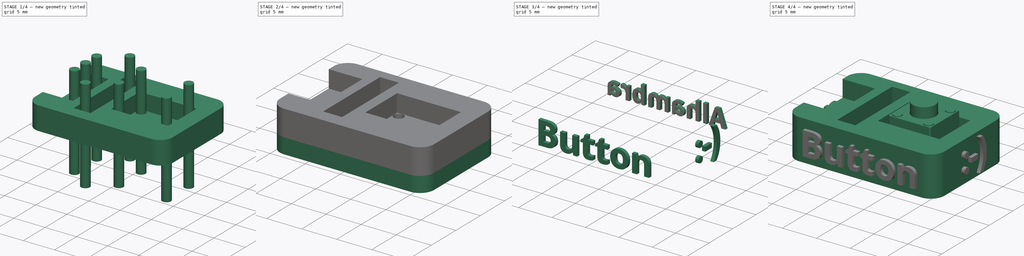
[diagram: build sequence overview — one tinted view per stage of 4, left to right]
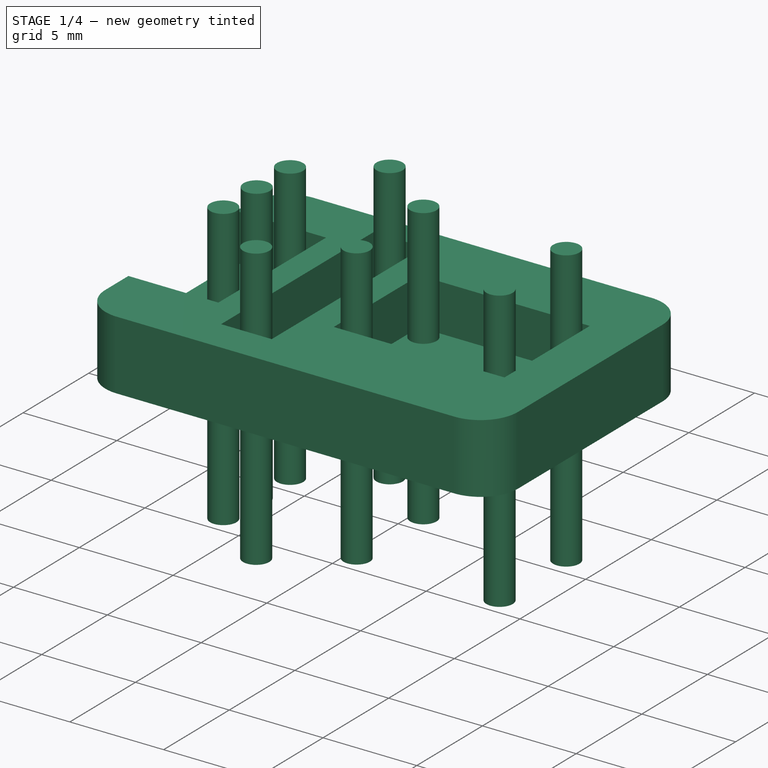
[diagram: stage 1 of 4 — iso view after this stage's code; geometry added in this stage tinted green]
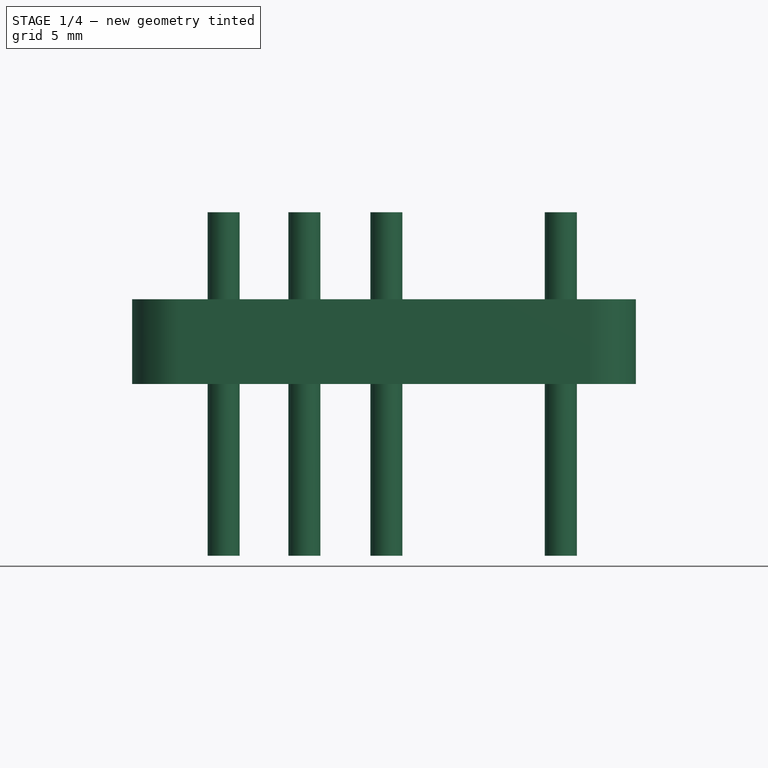
[diagram: stage 1 of 4 — front view after this stage's code; geometry added in this stage tinted green]
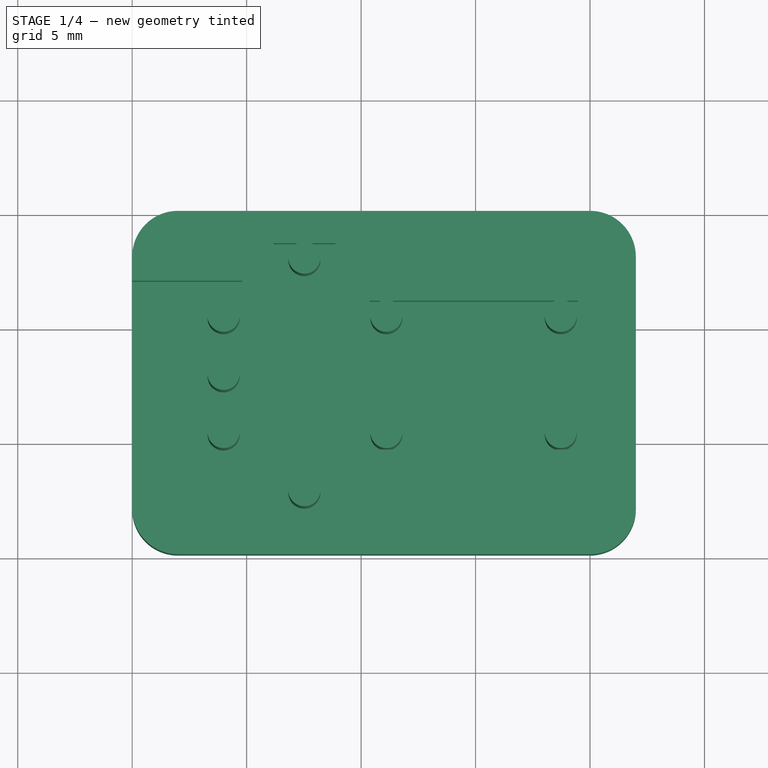
[diagram: stage 1 of 4 — top view after this stage's code; geometry added in this stage tinted green]
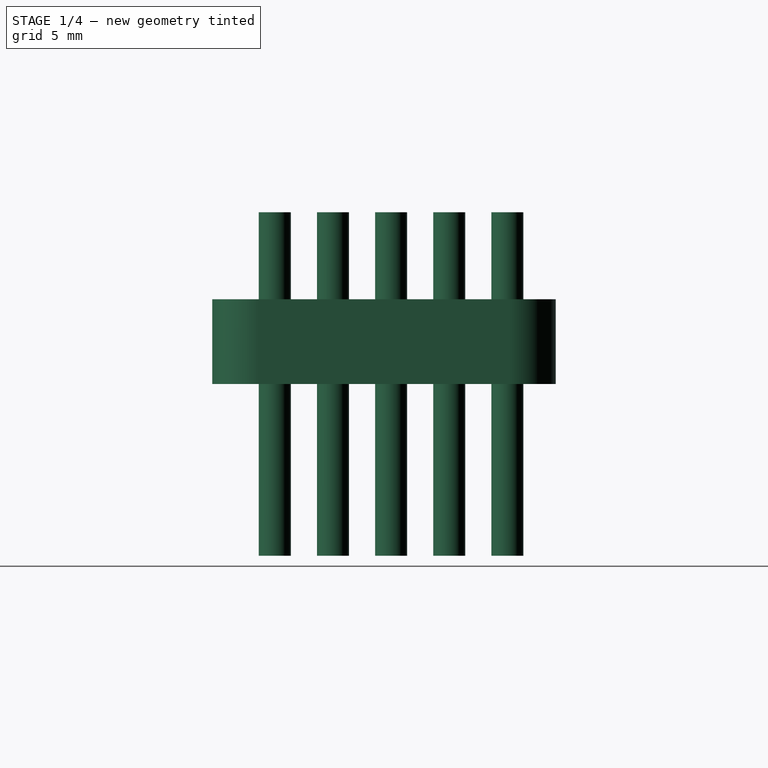
[diagram: stage 1 of 4 — right view after this stage's code; geometry added in this stage tinted green]
FCSTD DOCUMENT  (FreeCAD 0.16R6707 (Git))
Label: Alhambra-button
License: All rights reserved
LicenseURL: http://en.wikipedia.org/wiki/All_rights_reserved
objects: Part::Feature×14, Sketcher::SketchObject×5, Part::Part2DObjectPython×4, Part::Extrusion×4, App::DocumentObjectGroup×3, PartDesign::Pad×3, PartDesign::Pocket×2, Part::MultiFuse×2, Part::Compound×1, Spreadsheet::Sheet×1, Part::Cut×1
note: 41 computed .brp shape members not serialized (recipe doc carries the construction recipe); baked Part::Feature solids carry a one-line shape summary decoded from their .brp

FEATURE [Part::Feature] Clone001001  label="pins001"
  Placement = pos=(4.04,5.27,1.20028) rot=(0,0,1;0rad)
  shape: bbox 10.36 x 5.72 x 4.57 mm, 54 faces, 3 solids (baked)
FEATURE [Part::Feature] Clone002001  label="Insulators001"
  Placement = pos=(4.04,5.27,1.20028) rot=(0,0,1;0rad)
  shape: bbox 2.54 x 7.62 x 2.5 mm, 42 faces, 3 solids (baked)
FEATURE [App::DocumentObjectGroup] Group001  label="connector"
  Group = -> [Clone001001,Clone002001]
FEATURE [App::DocumentObjectGroup] Group  label="Electronic-components"
  Group = -> [Group001,Group005,Compound]
FEATURE [Sketcher::SketchObject] Sketch  label="PCB-base-sketch"
  sketch-geometry (12):
    g0: LineSegment [constr] StartX=0 StartY=0 StartZ=0 EndX=22 EndY=0 EndZ=0
    g1: LineSegment [constr] StartX=22 StartY=0 StartZ=0 EndX=22 EndY=15 EndZ=0
    g2: LineSegment [constr] StartX=22 StartY=15 StartZ=0 EndX=0 EndY=15 EndZ=0
    g3: LineSegment [constr] StartX=0 StartY=15 StartZ=0 EndX=0 EndY=0 EndZ=0
    g4: LineSegment StartX=2 StartY=15 StartZ=0 EndX=20 EndY=15 EndZ=0
    g5: LineSegment StartX=22 StartY=13 StartZ=0 EndX=22 EndY=2 EndZ=0
    g6: LineSegment StartX=20 StartY=0 StartZ=0 EndX=2 EndY=0 EndZ=0
    g7: LineSegment StartX=0 StartY=2 StartZ=0 EndX=0 EndY=13 EndZ=0
    g8: ArcOfCircle CenterX=2 CenterY=13 CenterZ=0 NormalX=0 NormalY=0 NormalZ=1 Radius=2 StartAngle=1.5708 EndAngle=3.14159
    g9: ArcOfCircle CenterX=2 CenterY=2 CenterZ=0 NormalX=0 NormalY=0 NormalZ=1 Radius=2 StartAngle=3.14159 EndAngle=4.71239
    g10: ArcOfCircle CenterX=20 CenterY=2 CenterZ=0 NormalX=0 NormalY=0 NormalZ=1 Radius=2 StartAngle=4.71239 EndAngle=6.28319
    g11: ArcOfCircle CenterX=20 CenterY=13 CenterZ=0 NormalX=0 NormalY=0 NormalZ=1 Radius=2 StartAngle=0 EndAngle=1.5708
  constraints (31):
    c: Coincident(g0,g1)
    c: Coincident(g1,g2)
    c: Coincident(g2,g3)
    c: Coincident(g3,g0)
    c: Horizontal(g0)
    c: Horizontal(g2)
    c: Vertical(g1)
    c: Vertical(g3)
    c: Coincident(g0,g-1)
    c: DistanceX(g0,g0) = 22
    c: DistanceY(g1,g1) = 15
    c: Horizontal(g4)
    c: Horizontal(g6)
    c: Vertical(g5)
    c: Vertical(g7)
    c: Tangent(g4,g8) = 1.5708
    c: Tangent(g7,g8) = 1.5708
    c: Tangent(g6,g9) = 1.5708
    c: Tangent(g7,g9) = 1.5708
    c: Tangent(g5,g10) = 1.5708
    c: Tangent(g6,g10) = 1.5708
    c: Tangent(g4,g11) = 1.5708
    c: Tangent(g5,g11) = 1.5708
    c: Equal(g8,g11)
    c: Equal(g11,g10)
    c: Equal(g10,g9)
    c: Radius(g8) = 2
    c: PointOnObject(g7,g3)
    c: PointOnObject(g4,g2)
    c: PointOnObject(g6,g0)
    c: PointOnObject(g5,g1)
FEATURE [Spreadsheet::Sheet] Spreadsheet  label="Parameters"
  cells = B2=PCB_th; C2(PCB_th)=1.2; D2=Thickness of the PCB layer; B3=Drill1_diam; C3(Drill1_diam)=1.4; D3=Drills type 1 diameter; B4=PCB_sp; C4(PCB_sp)=0.2; D4=Thickness of the PCB spacer layer; B5=PCB_ch_th_; C5(PCB_ch_th)=2; D5=Thickness of the Bottom channels; B6=PCB_top_th_; C6(PCB_top_th)=2.5; D6=Thickness of the TOP pcb
FEATURE [PartDesign::Pad] Pad  label="PCB-base"
  Length = 3.7
  Length2 = 100
  Sketch = -> Sketch
  Type = 0
  expr: Length = Parameters.PCB_top_th + Parameters.PCB_th
FEATURE [Sketcher::SketchObject] Sketch001  label="drills-sketch"
  Placement = pos=(-0.00699069,-0.0292359,0) rot=(0,0,1;0rad)
  expr: Constraints[21] = 2.54 * 2
  expr: Constraints[20] = 2.54 * 3
  expr: Constraints[5] = 2.54 * 4
  expr: Constraints[2] = Parameters.Drill1_diam / 2
  expr: Constraints[1] = 2.54 * 2
  sketch-geometry (15):
    g0: Circle CenterX=7.53 CenterY=12.92 CenterZ=0 NormalX=0 NormalY=0 NormalZ=1 Radius=0.7
    g1: LineSegment [constr] StartX=4 StartY=10.38 StartZ=0 EndX=4 EndY=5.3 EndZ=0
    g2: LineSegment [constr] StartX=7.53 StartY=12.92 StartZ=0 EndX=7.53 EndY=2.76 EndZ=0
    g3: Circle CenterX=7.53 CenterY=2.76 CenterZ=0 NormalX=0 NormalY=0 NormalZ=1 Radius=0.7
    g4: Circle CenterX=4 CenterY=10.38 CenterZ=0 NormalX=0 NormalY=0 NormalZ=1 Radius=0.7
    g5: Circle CenterX=4 CenterY=7.84 CenterZ=0 NormalX=0 NormalY=0 NormalZ=1 Radius=0.7
    g6: Circle CenterX=4 CenterY=5.3 CenterZ=0 NormalX=0 NormalY=0 NormalZ=1 Radius=0.7
    g7: LineSegment [constr] StartX=11.11 StartY=5.3 StartZ=0 EndX=11.11 EndY=10.38 EndZ=0
    g8: LineSegment [constr] StartX=11.11 StartY=10.38 StartZ=0 EndX=18.73 EndY=10.38 EndZ=0
    g9: Circle CenterX=11.11 CenterY=10.38 CenterZ=0 NormalX=0 NormalY=0 NormalZ=1 Radius=0.7
    g10: Circle CenterX=18.73 CenterY=10.38 CenterZ=0 NormalX=0 NormalY=0 NormalZ=1 Radius=0.7
    g11: Circle CenterX=11.11 CenterY=5.3 CenterZ=0 NormalX=0 NormalY=0 NormalZ=1 Radius=0.7
    g12: Circle CenterX=18.73 CenterY=5.3 CenterZ=0 NormalX=0 NormalY=0 NormalZ=1 Radius=0.7
    g13: LineSegment [constr] StartX=11.11 StartY=5.3 StartZ=0 EndX=18.73 EndY=5.3 EndZ=0
    g14: LineSegment [constr] StartX=18.73 StartY=10.38 StartZ=0 EndX=18.73 EndY=5.3 EndZ=0
  constraints (39):
    c: Vertical(g1)
    c: DistanceY(g1,g1) = 5.08
    c: Radius(g0) = 0.7
    c: Coincident(g2,g0)
    c: Vertical(g2)
    c: DistanceY(g2,g2) = 10.16
    c: Coincident(g3,g2)
    c: Equal(g3,g0)
    c: Coincident(g4,g1)
    c: DistanceY(g1,g0) = 2.54
    c: DistanceX(g1,g0) = 3.53
    c: Coincident(g6,g1)
    c: Equal(g6,g5)
    c: Equal(g5,g4)
    c: Equal(g4,g0)
    c: PointOnObject(g5,g1)
    c: DistanceY(g5,g1) = 2.54
    c: Vertical(g7)
    c: Coincident(g8,g7)
    c: Horizontal(g8)
    c: DistanceX(g8,g8) = 7.62
    c: DistanceY(g7,g7) = 5.08
    c: Coincident(g9,g7)
    c: Coincident(g10,g8)
    c: Coincident(g11,g7)
    c: Coincident(g13,g7)
    c: Horizontal(g13)
    c: Coincident(g14,g8)
    c: Vertical(g14)
    c: Coincident(g13,g14)
    c: Coincident(g12,g13)
    c: DistanceX(g2,g7) = 3.58
    c: DistanceY(g2,g7) = 2.54
    c: Equal(g9,g10)
    c: Equal(g10,g12)
    c: Equal(g12,g11)
    c: Equal(g11,g0)
    c: DistanceX(g-1,g1) = 4
    c: DistanceY(g-1,g1) = 5.3
FEATURE [PartDesign::Pad] Pad003005  label="Drills-map"
  Length = 15
  Length2 = 100
  Midplane = true
  Placement = pos=(-0.00699069,-0.0292359,0) rot=(0,0,1;0rad)
  Sketch = -> Sketch001
  Type = 0
FEATURE [Sketcher::SketchObject] Sketch002  label="PCB-top-sketch"
  Placement = pos=(0,0,3.7) rot=(0,0,1;0rad)
  Support = -> Pad [Face10]
  sketch-geometry (12):
    g0: LineSegment StartX=0 StartY=11.9441 StartZ=0 EndX=4.8 EndY=11.9441 EndZ=0
    g1: LineSegment StartX=4.8 StartY=11.9441 StartZ=0 EndX=4.8 EndY=3.74408 EndZ=0
    g2: LineSegment StartX=4.8 StartY=3.74408 StartZ=0 EndX=0 EndY=3.74408 EndZ=0
    g3: LineSegment StartX=0 StartY=3.74408 StartZ=0 EndX=0 EndY=11.9441 EndZ=0
    g4: LineSegment StartX=6.17367 StartY=13.5867 StartZ=0 EndX=8.87367 EndY=13.5867 EndZ=0
    g5: LineSegment StartX=8.87367 StartY=13.5867 StartZ=0 EndX=8.87367 EndY=1.98674 EndZ=0
    g6: LineSegment StartX=8.87367 StartY=1.98674 StartZ=0 EndX=6.17367 EndY=1.98674 EndZ=0
    g7: LineSegment StartX=6.17367 StartY=1.98674 StartZ=0 EndX=6.17367 EndY=13.5867 EndZ=0
    g8: LineSegment StartX=10.373 StartY=11.0728 StartZ=0 EndX=19.473 EndY=11.0728 EndZ=0
    g9: LineSegment StartX=19.473 StartY=11.0728 StartZ=0 EndX=19.473 EndY=4.57281 EndZ=0
    g10: LineSegment StartX=19.473 StartY=4.57281 StartZ=0 EndX=10.373 EndY=4.57281 EndZ=0
    g11: LineSegment StartX=10.373 StartY=4.57281 StartZ=0 EndX=10.373 EndY=11.0728 EndZ=0
  constraints (31):
    c: Coincident(g0,g1)
    c: Coincident(g1,g2)
    c: Coincident(g2,g3)
    c: Coincident(g3,g0)
    c: Horizontal(g0)
    c: Horizontal(g2)
    c: Vertical(g1)
    c: Vertical(g3)
    c: PointOnObject(g0,g-2)
    c: Coincident(g4,g5)
    c: Coincident(g5,g6)
    c: Coincident(g6,g7)
    c: Coincident(g7,g4)
    c: Horizontal(g4)
    c: Horizontal(g6)
    c: Vertical(g5)
    c: Vertical(g7)
    c: DistanceX(g4,g4) = 2.7
    c: DistanceY(g5,g5) = 11.6
    c: Coincident(g8,g9)
    c: Coincident(g9,g10)
    c: Coincident(g10,g11)
    c: Coincident(g11,g8)
    c: Horizontal(g8)
    c: Horizontal(g10)
    c: Vertical(g9)
    c: Vertical(g11)
    c: DistanceX(g8,g8) = 9.1
    c: DistanceY(g9,g9) = 6.5
    c: DistanceY(g1,g1) = 8.2
    c: DistanceX(g0,g0) = 4.8
FEATURE [PartDesign::Pocket] Pocket  label="PCB-top"
  Length = 2.5
  Sketch = -> Sketch002
  Type = 0
  expr: Length = Parameters.PCB_top_th
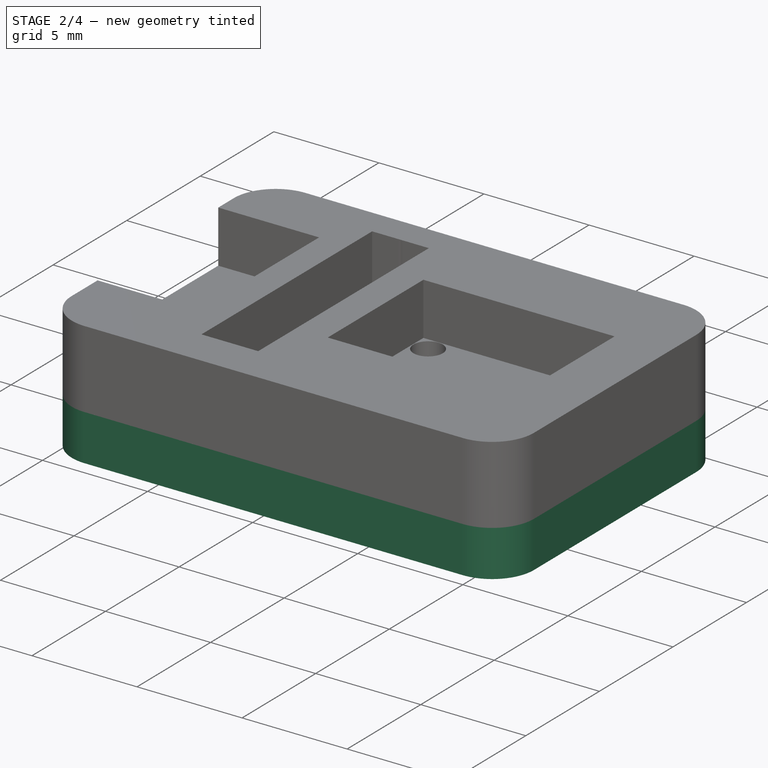
[diagram: stage 2 of 4 — iso view after this stage's code; geometry added in this stage tinted green]
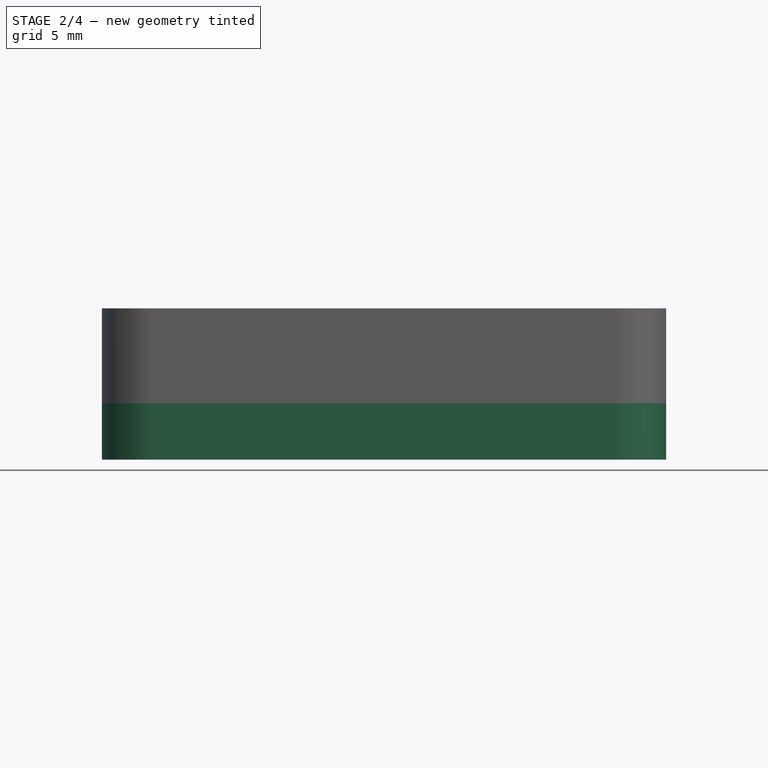
[diagram: stage 2 of 4 — front view after this stage's code; geometry added in this stage tinted green]
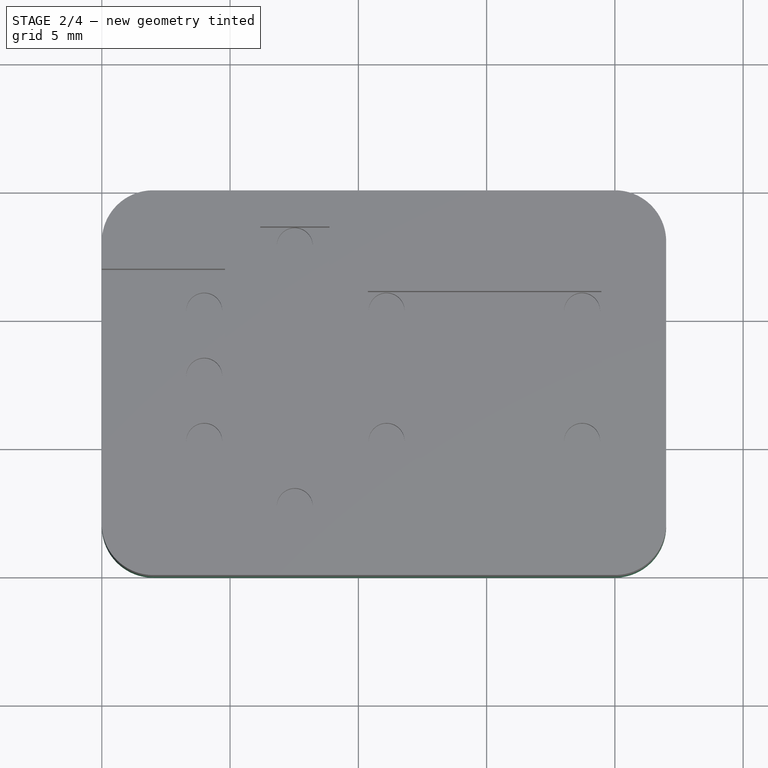
[diagram: stage 2 of 4 — top view after this stage's code; geometry added in this stage tinted green]
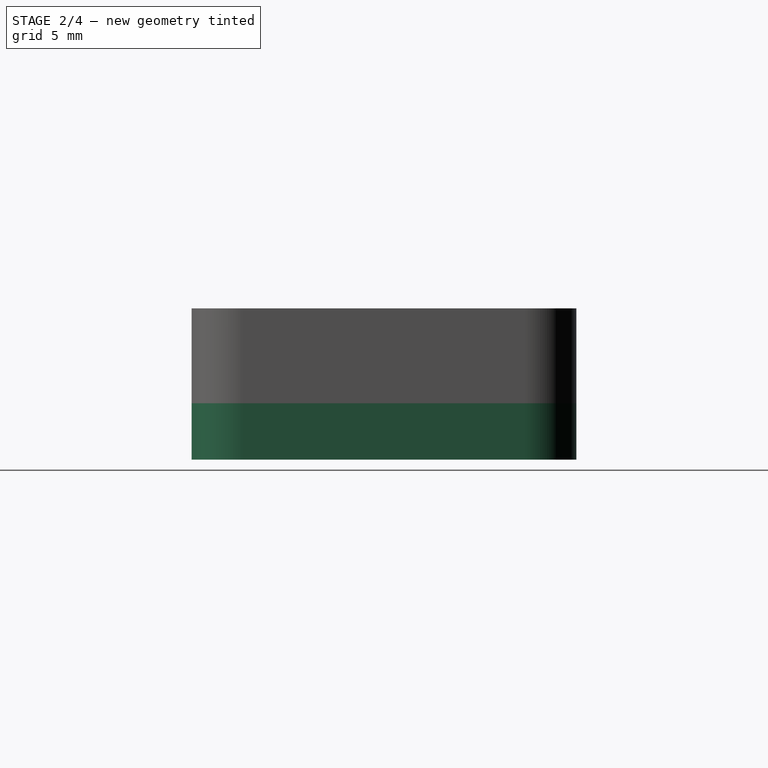
[diagram: stage 2 of 4 — right view after this stage's code; geometry added in this stage tinted green]
FEATURE [Sketcher::SketchObject] Sketch003  label="PCB-base-bottom"
  sketch-geometry (12):
    g0: LineSegment [constr] StartX=0 StartY=0 StartZ=0 EndX=22 EndY=0 EndZ=0
    g1: LineSegment [constr] StartX=22 StartY=0 StartZ=0 EndX=22 EndY=15 EndZ=0
    g2: LineSegment [constr] StartX=22 StartY=15 StartZ=0 EndX=0 EndY=15 EndZ=0
    g3: LineSegment [constr] StartX=0 StartY=15 StartZ=0 EndX=0 EndY=0 EndZ=0
    g4: LineSegment StartX=2 StartY=15 StartZ=0 EndX=20 EndY=15 EndZ=0
    g5: LineSegment StartX=22 StartY=13 StartZ=0 EndX=22 EndY=2 EndZ=0
    g6: LineSegment StartX=20 StartY=0 StartZ=0 EndX=2 EndY=0 EndZ=0
    g7: LineSegment StartX=0 StartY=2 StartZ=0 EndX=0 EndY=13 EndZ=0
    g8: ArcOfCircle CenterX=2 CenterY=13 CenterZ=0 NormalX=0 NormalY=0 NormalZ=1 Radius=2 StartAngle=1.5708 EndAngle=3.14159
    g9: ArcOfCircle CenterX=2 CenterY=2 CenterZ=0 NormalX=0 NormalY=0 NormalZ=1 Radius=2 StartAngle=3.14159 EndAngle=4.71239
    g10: ArcOfCircle CenterX=20 CenterY=2 CenterZ=0 NormalX=0 NormalY=0 NormalZ=1 Radius=2 StartAngle=4.71239 EndAngle=6.28319
    g11: ArcOfCircle CenterX=20 CenterY=13 CenterZ=0 NormalX=0 NormalY=0 NormalZ=1 Radius=2 StartAngle=0 EndAngle=1.5708
  constraints (31):
    c: Coincident(g0,g1)
    c: Coincident(g1,g2)
    c: Coincident(g2,g3)
    c: Coincident(g3,g0)
    c: Horizontal(g0)
    c: Horizontal(g2)
    c: Vertical(g1)
    c: Vertical(g3)
    c: Coincident(g0,g-1)
    c: DistanceX(g0,g0) = 22
    c: DistanceY(g1,g1) = 15
    c: Horizontal(g4)
    c: Horizontal(g6)
    c: Vertical(g5)
    c: Vertical(g7)
    c: Tangent(g4,g8) = 1.5708
    c: Tangent(g7,g8) = 1.5708
    c: Tangent(g6,g9) = 1.5708
    c: Tangent(g7,g9) = 1.5708
    c: Tangent(g5,g10) = 1.5708
    c: Tangent(g6,g10) = 1.5708
    c: Tangent(g4,g11) = 1.5708
    c: Tangent(g5,g11) = 1.5708
    c: Equal(g8,g11)
    c: Equal(g11,g10)
    c: Equal(g10,g9)
    c: Radius(g8) = 2
    c: PointOnObject(g7,g3)
    c: PointOnObject(g4,g2)
    c: PointOnObject(g6,g0)
    c: PointOnObject(g5,g1)
FEATURE [PartDesign::Pad] Pad003006  label="PCB-bottom"
  Length = 2.2
  Length2 = 100
  Reversed = true
  Sketch = -> Sketch003
  Type = 0
  expr: Length = Parameters.PCB_sp + Parameters.PCB_ch_th
FEATURE [Sketcher::SketchObject] Sketch004  label="PCB-channels-sketch"
  Placement = pos=(0,0,-2.2) rot=(1,0,0;3.14159rad)
  Support = -> Pad003006 [Face10]
  sketch-geometry (22):
    g0: LineSegment StartX=2.02166 StartY=-10.8867 StartZ=0 EndX=2.02166 EndY=-4.07876 EndZ=0
    g1: LineSegment StartX=8.75127 StartY=-1.18124 StartZ=0 EndX=8.75127 EndY=-3.34276 EndZ=0
    g2: LineSegment StartX=6.16988 StartY=-5.14639 StartZ=0 EndX=8.75127 EndY=-3.34276 EndZ=0
    g3: LineSegment StartX=8.75127 StartY=-1.18124 StartZ=0 EndX=6.16862 EndY=-1.18124 EndZ=0
    g4: LineSegment StartX=6.16862 StartY=-1.18124 StartZ=0 EndX=2.02166 EndY=-4.07876 EndZ=0
    g5: LineSegment StartX=2.02166 StartY=-10.8867 StartZ=0 EndX=4.88475 EndY=-14.2367 EndZ=0
    g6: LineSegment StartX=4.88475 StartY=-14.2367 StartZ=0 EndX=9.88421 EndY=-14.2367 EndZ=0
    g7: LineSegment StartX=10.699 StartY=-8.39067 StartZ=0 EndX=6.80907 EndY=-11.1086 EndZ=0
    g8: LineSegment StartX=6.16988 StartY=-5.14639 StartZ=0 EndX=6.16988 EndY=-6.59349 EndZ=0
    g9: LineSegment StartX=11.2901 StartY=-3.01598 StartZ=0 EndX=13.4796 EndY=-3.01598 EndZ=0
    g10: LineSegment StartX=10.6994 StartY=-6.92761 StartZ=0 EndX=6.80907 EndY=-9.64579 EndZ=0
    g11: LineSegment StartX=6.80907 StartY=-9.64579 StartZ=0 EndX=6.80907 EndY=-11.1086 EndZ=0
    g12: LineSegment StartX=13.673 StartY=-11.5894 StartZ=0 EndX=9.88421 EndY=-14.2367 EndZ=0
    g13: LineSegment StartX=11.2901 StartY=-3.01598 StartZ=0 EndX=6.16988 EndY=-6.59349 EndZ=0
    g14: LineSegment StartX=10.6994 StartY=-6.92761 StartZ=0 EndX=13.4796 EndY=-6.92761 EndZ=0
    g15: LineSegment StartX=13.4796 StartY=-6.92761 StartZ=0 EndX=13.4796 EndY=-3.01598 EndZ=0
    g16: LineSegment StartX=10.699 StartY=-8.39067 StartZ=0 EndX=13.673 EndY=-8.39067 EndZ=0
    g17: LineSegment StartX=13.673 StartY=-8.39067 StartZ=0 EndX=13.673 EndY=-11.5894 EndZ=0
    g18: LineSegment StartX=16.7345 StartY=-3.08897 StartZ=0 EndX=19.947 EndY=-3.08897 EndZ=0
    g19: LineSegment StartX=19.947 StartY=-3.08897 StartZ=0 EndX=19.947 EndY=-11.8114 EndZ=0
    g20: LineSegment StartX=19.947 StartY=-11.8114 StartZ=0 EndX=16.7345 EndY=-11.8114 EndZ=0
    g21: LineSegment StartX=16.7345 StartY=-11.8114 StartZ=0 EndX=16.7345 EndY=-3.08897 EndZ=0
  constraints (42):
    c: Vertical(g0)
    c: Vertical(g1)
    c: Coincident(g2,g1)
    c: Coincident(g1,g3)
    c: Horizontal(g3)
    c: Coincident(g3,g4)
    c: Coincident(g4,g0)
    c: Parallel(g4,g2)
    c: Coincident(g0,g5)
    c: Coincident(g5,g6)
    c: Horizontal(g6)
    c: Coincident(g2,g8)
    c: Vertical(g8)
    c: Horizontal(g9)
    c: Coincident(g10,g11)
    c: Coincident(g11,g7)
    c: Coincident(g12,g6)
    c: Coincident(g13,g9)
    c: Coincident(g13,g8)
    c: Parallel(g2,g13)
    c: Vertical(g11)
    c: Parallel(g13,g10)
    c: Parallel(g7,g10)
    c: Parallel(g7,g12)
    c: Coincident(g10,g14)
    c: Horizontal(g14)
    c: Coincident(g14,g15)
    c: Coincident(g15,g9)
    c: Vertical(g15)
    c: Coincident(g7,g16)
    c: Horizontal(g16)
    c: Coincident(g16,g17)
    c: Coincident(g17,g12)
    c: Vertical(g17)
    c: Coincident(g18,g19)
    c: Coincident(g19,g20)
    c: Coincident(g20,g21)
    c: Coincident(g21,g18)
    c: Horizontal(g18)
    c: Horizontal(g20)
    c: Vertical(g19)
    c: Vertical(g21)
FEATURE [PartDesign::Pocket] Pocket001  label="PCB-channels"
  Length = 2
  Sketch = -> Sketch004
  Type = 0
  expr: Length = Parameters.PCB_ch_th
FEATURE [Part::Cut] Cut  label="PCB-top-drills"
  Base = -> Pocket
  Tool = -> Pad003005
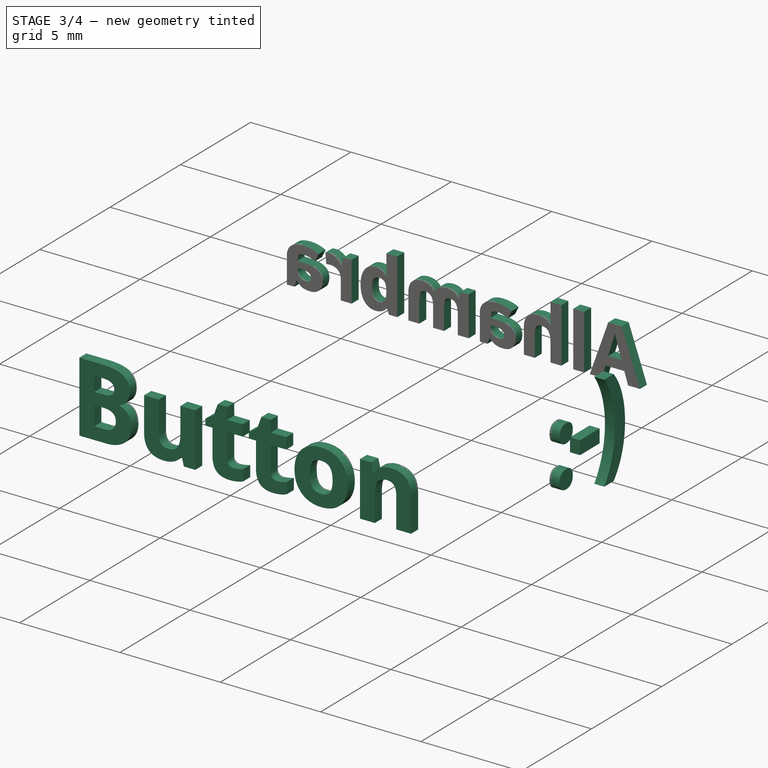
[diagram: stage 3 of 4 — iso view after this stage's code; geometry added in this stage tinted green]
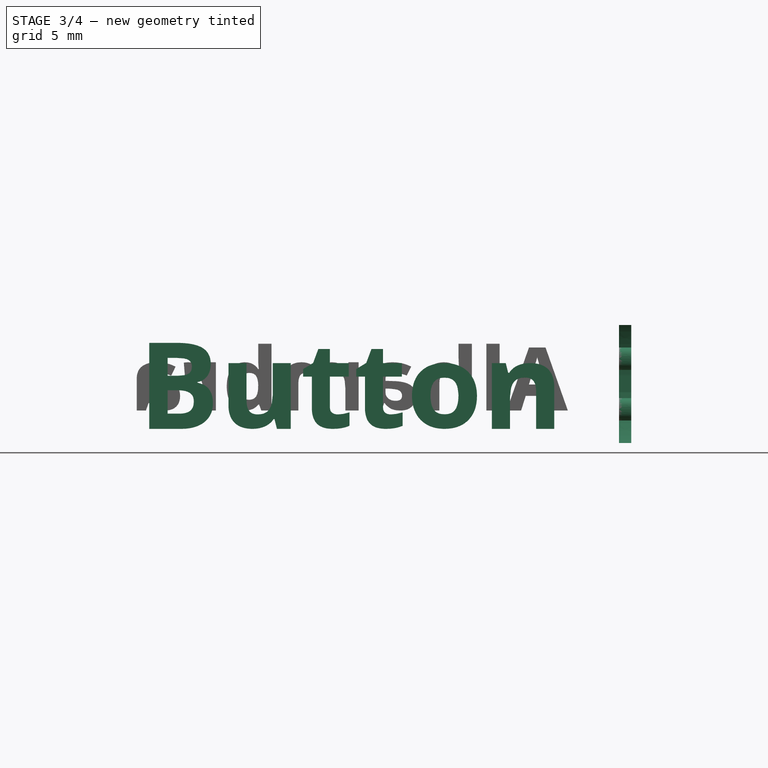
[diagram: stage 3 of 4 — front view after this stage's code; geometry added in this stage tinted green]
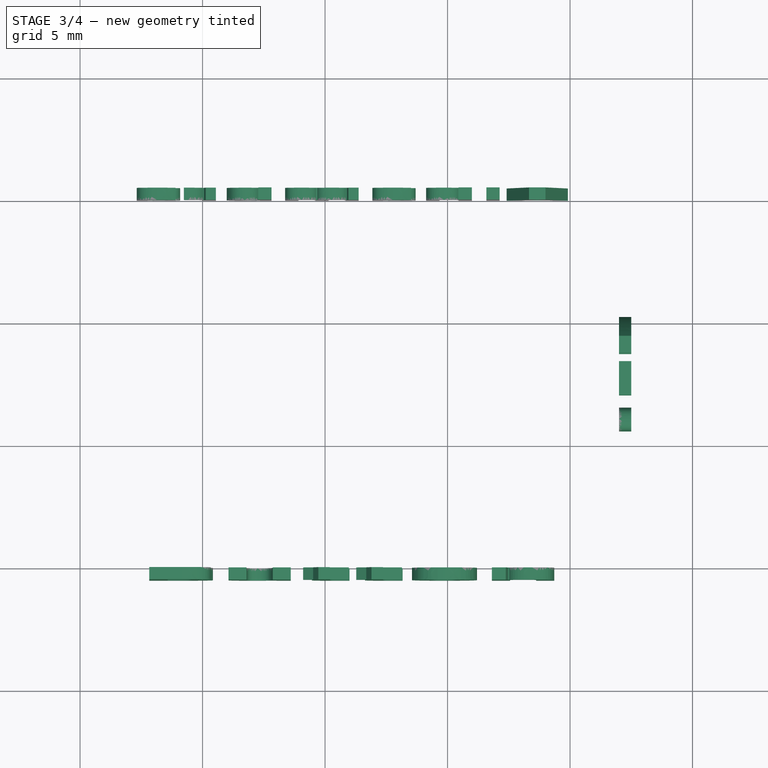
[diagram: stage 3 of 4 — top view after this stage's code; geometry added in this stage tinted green]
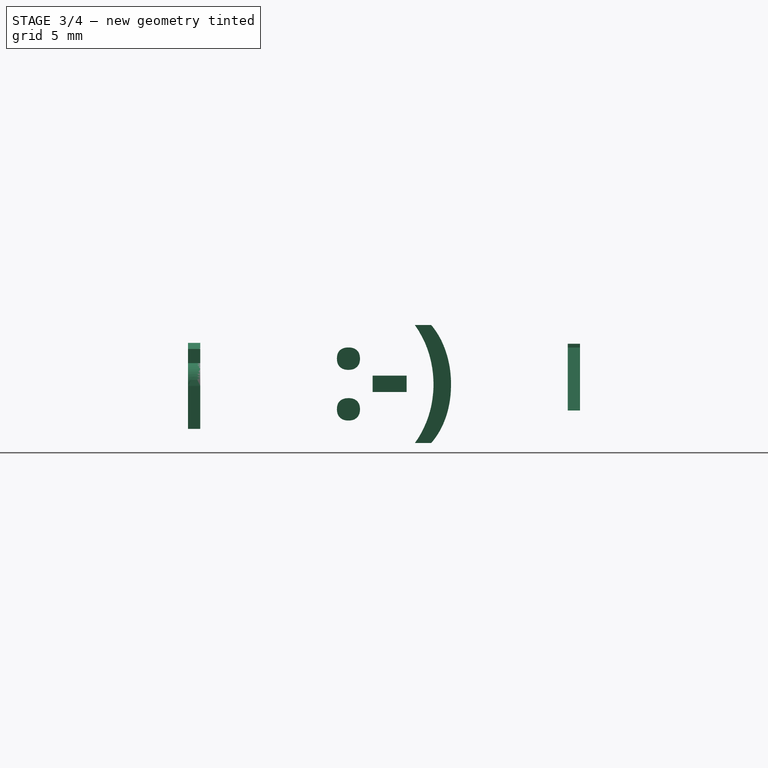
[diagram: stage 3 of 4 — right view after this stage's code; geometry added in this stage tinted green]
FEATURE [Part::MultiFuse] Fusion  label="PCB-bloque"
  Shapes = -> [Pocket001,Cut]
FEATURE [Part::Part2DObjectPython] ShapeString001  # Draft 2D object (typed FeaturePython)
  FontFile = <userpath>/develop/PCBprint/Alhambra-button/Opensans/OpenSans-Bold.ttf
  Placement = pos=(2.37938,0,-1.1092) rot=(1,0,0;1.5708rad)
  Size = 4.5
  String = Button
  Support = -> Fusion
  Tracking = 0
FEATURE [Part::Extrusion] Extrude002  label="Button-letters"
  Base = -> ShapeString001
  Dir = (0,-0.5,0)
  Solid = true
FEATURE [Part::Part2DObjectPython] ShapeString002  # Draft 2D object (typed FeaturePython)
  FontFile = <userpath>/develop/PCBprint/Alhambra-button/Opensans/OpenSans-Bold.ttf
  Placement = pos=(19.9096,15,-0.361004) rot=(0,0.707107,0.707107;3.14159rad)
  Size = 3.3
  String = Alhambra
  Support = -> Fusion
  Tracking = 0
FEATURE [Part::Extrusion] Extrude003  label="Alhambra-letters"
  Base = -> ShapeString002
  Dir = (0,0.5,0)
  Solid = true
FEATURE [Part::Part2DObjectPython] ShapeString003  # Draft 2D object (typed FeaturePython)
  FontFile = <userpath>/develop/PCBprint/Alhambra-button/Opensans/OpenSans-Bold.ttf
  Placement = pos=(22,5.26305,-0.770099) rot=(0.57735,0.57735,0.57735;2.0944rad)
  Size = 5
  String = :-)
  Support = -> Fusion
  Tracking = 0
FEATURE [Part::Extrusion] Extrude004  label="smily"
  Base = -> ShapeString003
  Dir = (0.5,0,0)
  Solid = true
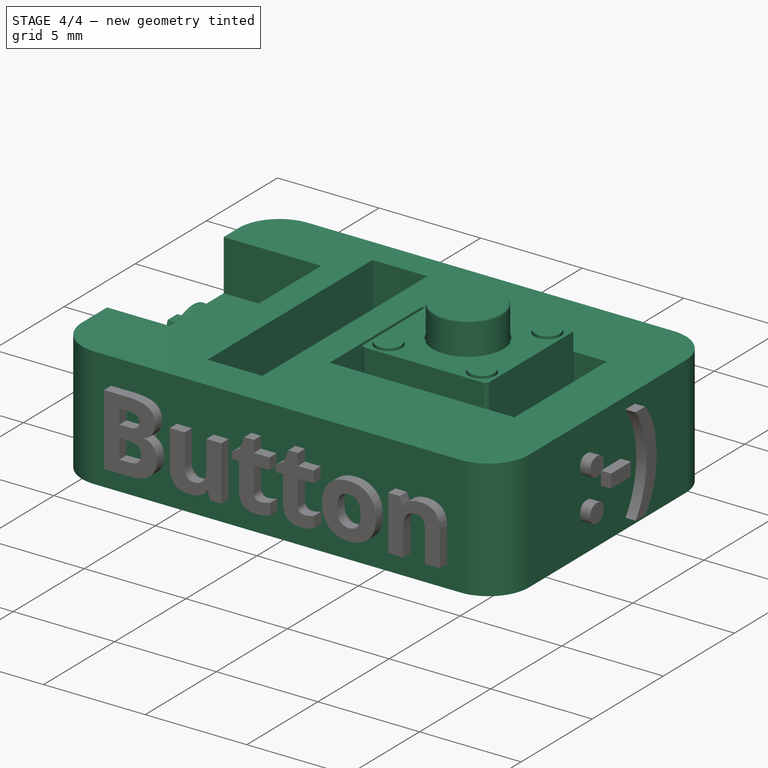
[diagram: stage 4 of 4 — iso view after this stage's code; geometry added in this stage tinted green]
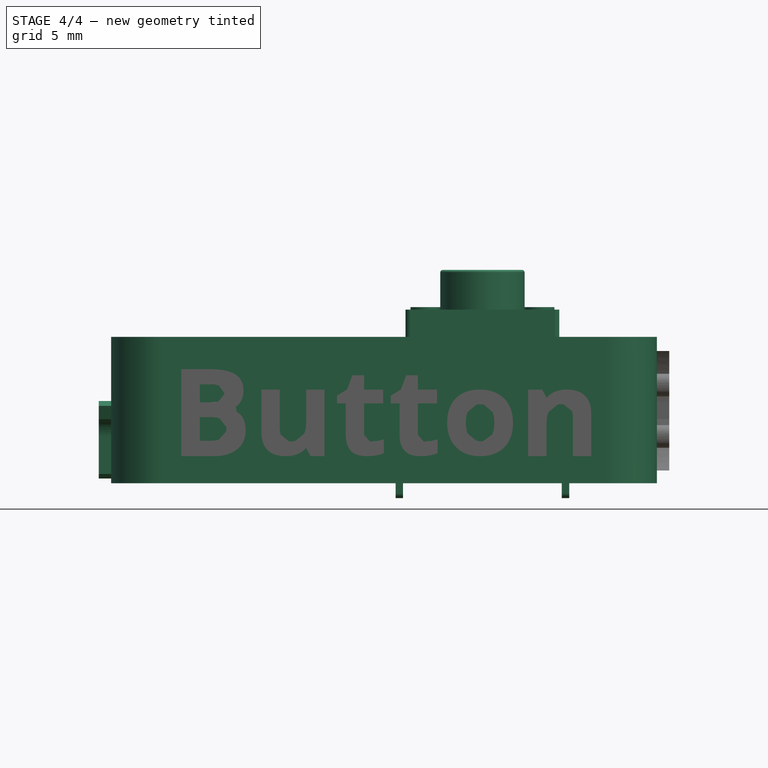
[diagram: stage 4 of 4 — front view after this stage's code; geometry added in this stage tinted green]
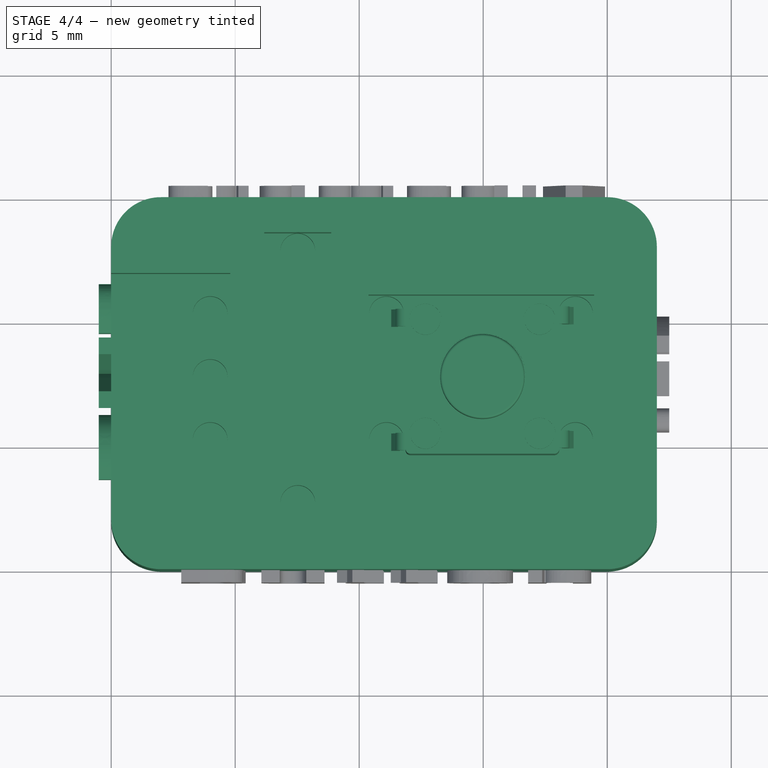
[diagram: stage 4 of 4 — top view after this stage's code; geometry added in this stage tinted green]
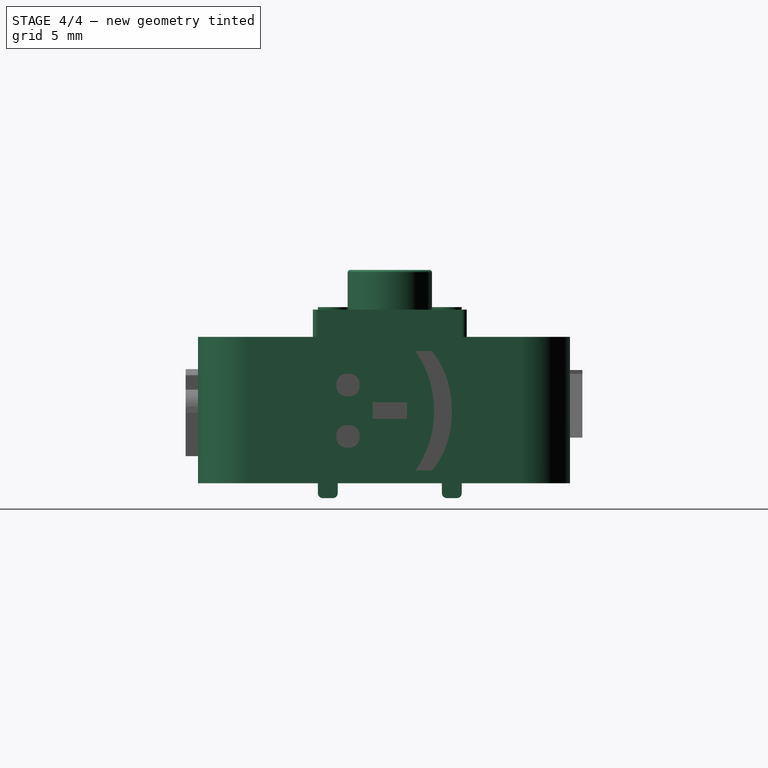
[diagram: stage 4 of 4 — right view after this stage's code; geometry added in this stage tinted green]
FEATURE [Part::Feature] Part__Feature009  label="Clone_of_res-body001"
  Placement = pos=(7.55196,7.81067,2.36562) rot=(0,0,-1;1.5708rad)
  shape: bbox 2.3 x 6 x 2.3 mm, 5 faces (baked)
FEATURE [Part::Feature] Part__Feature010  label="Clone_of_ring-005"
  Placement = pos=(7.55196,7.81067,2.36562) rot=(0,0,-1;1.5708rad)
  shape: bbox 1.833 x 0.4 x 1.833 mm, 4 faces (baked)
FEATURE [Part::Feature] Part__Feature011  label="Clone_of_ring-006"
  Placement = pos=(7.55196,7.81067,2.36562) rot=(0,0,-1;1.5708rad)
  shape: bbox 1.833 x 0.4 x 1.833 mm, 4 faces (baked)
FEATURE [Part::Feature] Part__Feature012  label="Clone_of_ring-007"
  Placement = pos=(7.55196,7.81067,2.36562) rot=(0,0,-1;1.5708rad)
  shape: bbox 2.233 x 0.3939 x 2.233 mm, 4 faces (baked)
FEATURE [Part::Feature] Part__Feature013  label="Clone_of_ring-008"
  Placement = pos=(7.55196,7.81067,2.36562) rot=(0,0,-1;1.5708rad)
  shape: bbox 2.231 x 0.3919 x 2.231 mm, 4 faces (baked)
FEATURE [Part::Feature] Part__Feature014  label="Clone_of_Sweep001"
  Placement = pos=(7.55196,7.81067,2.36562) rot=(0,0,-1;1.5708rad)
  shape: bbox 0.5 x 10.64 x 4.404 mm, 7 faces (baked)
FEATURE [App::DocumentObjectGroup] Group005  label="Resistor-2K"
  Group = -> [Part__Feature009,Part__Feature010,Part__Feature011,Part__Feature012,Part__Feature013,Part__Feature014]
FEATURE [Part::Feature] Fillet001  label="pin-1"
  Placement = pos=(-3.2,-2.2,0) rot=(1,0,0;1.5708rad)
  shape: bbox 0.922 x 0.7 x 4.6 mm, 20 faces (baked)
FEATURE [Part::Feature] Fillet002  label="pin-002"
  Placement = pos=(-3.2,2.8,0) rot=(1,0,0;1.5708rad)
  shape: bbox 0.922 x 0.7 x 4.6 mm, 20 faces (baked)
FEATURE [Part::Feature] Fillet003  label="pin-003"
  Placement = pos=(3.2,-2.8,0) rot=(0,0.707107,0.707107;3.14159rad)
  shape: bbox 0.922 x 0.7 x 4.6 mm, 20 faces (baked)
FEATURE [Part::Feature] Fillet004  label="pin-004"
  Placement = pos=(3.2,2.2,0) rot=(0,0.707107,0.707107;3.14159rad)
  shape: bbox 0.922 x 0.7 x 4.6 mm, 20 faces (baked)
FEATURE [Part::Feature] Pad003004  label="top-metal-plate001"
  Placement = pos=(0,0,3.2) rot=(0,0,1;0rad)
  shape: bbox 6.2 x 6.2 x 0.2 mm, 15 faces (baked)
FEATURE [Part::Feature] Fillet006  label="button-body"
  shape: bbox 6.2 x 6.2 x 5.2 mm, 41 faces (baked)
FEATURE [Part::Compound] Compound  label="pushbutton-mini"
  Links = -> [Fillet006,Fillet003,Fillet001,Fillet002,Fillet004,Pad003004]
  Placement = pos=(14.9681,7.73489,1.4) rot=(0,0,1;0rad)
FEATURE [Part::Part2DObjectPython] ShapeString  # Draft 2D object (typed FeaturePython)
  FontFile = <userpath>/develop/PCBprint/Alhambra-button/Opensans/OpenSans-Bold.ttf
  Placement = pos=(0,11.7761,-2.00751) rot=(0.57735,-0.57735,-0.57735;2.0944rad)
  Size = 4
  String = SVG
  Support = -> Fusion
  Tracking = 0
FEATURE [Part::Extrusion] Extrude  label="SVG-letters"
  Base = -> ShapeString
  Dir = (-0.5,0,0)
  Solid = true
FEATURE [Part::MultiFuse] Fusion001  label="PCB-with-text"
  Shapes = -> [Fusion,Extrude,Extrude003,Extrude002,Extrude004]
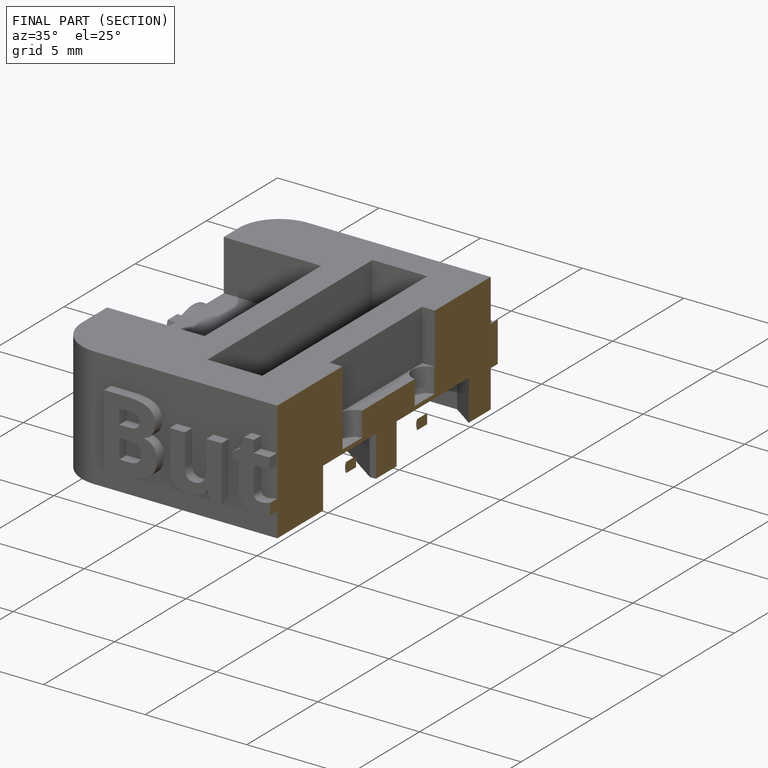
[diagram: finished part — half-section view (interior)]
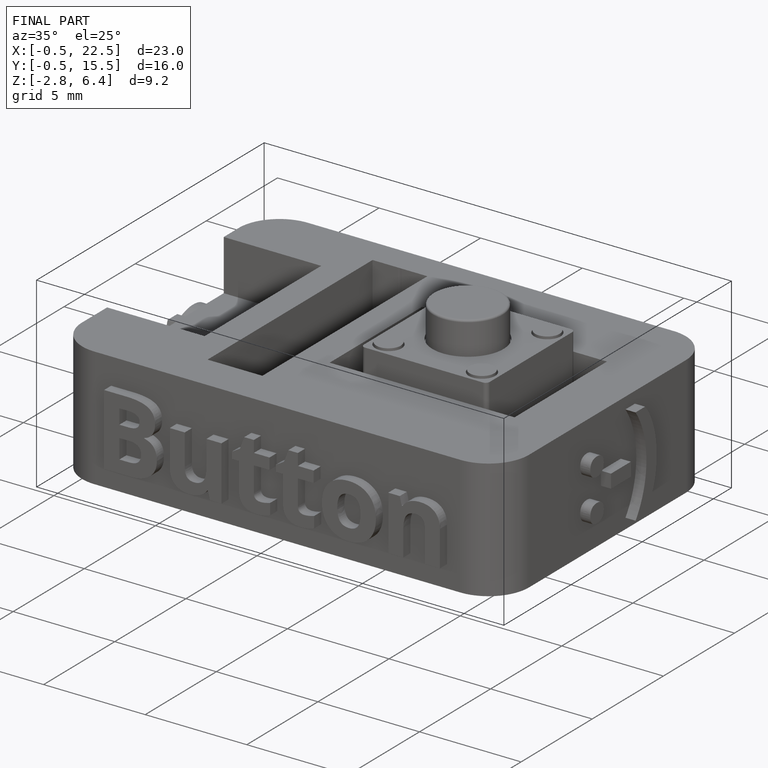
[diagram: finished part — iso view with bounding-box wireframe]
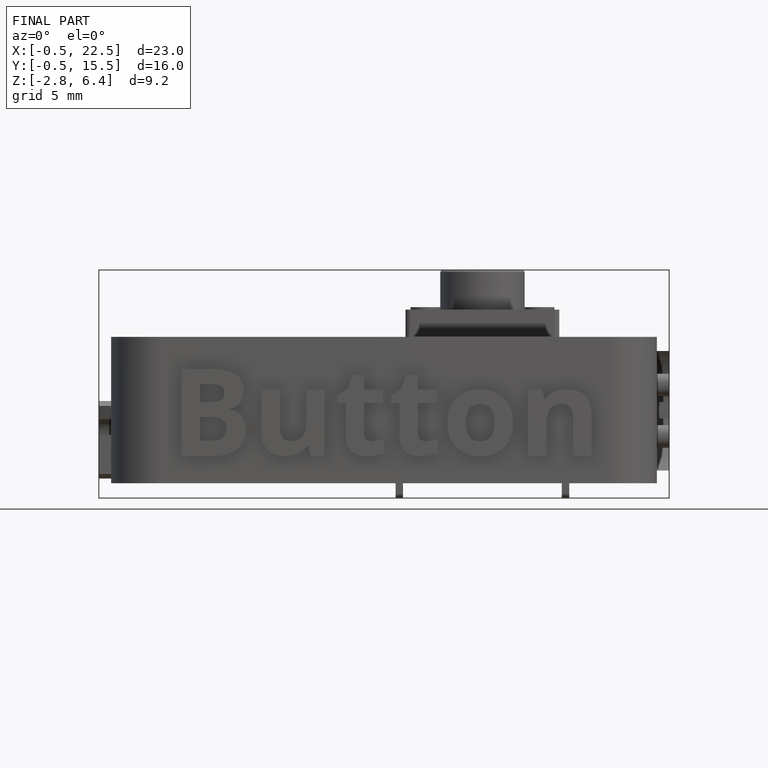
[diagram: finished part — front view with bounding-box wireframe]
